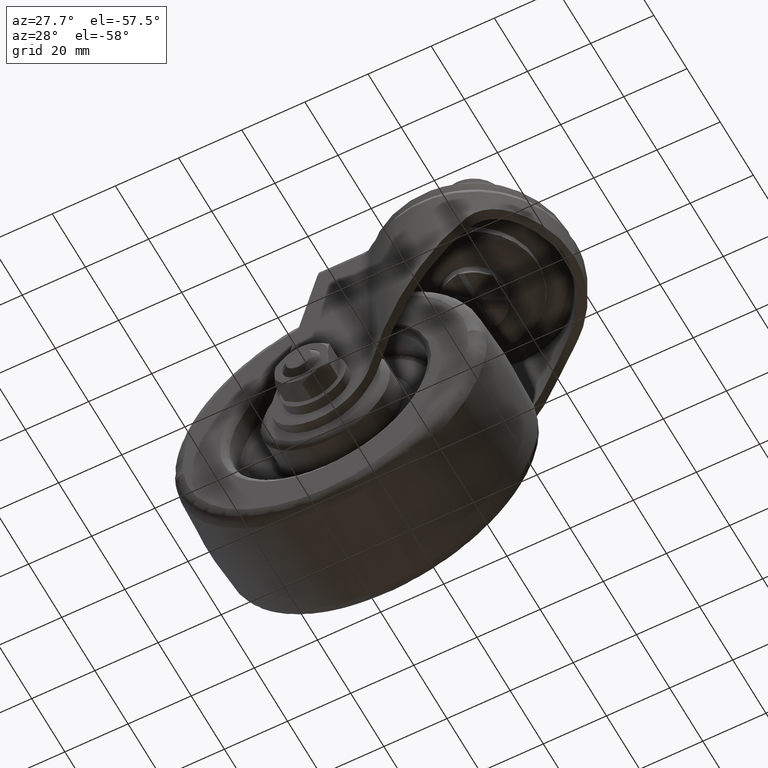
[diagram: clean part render]
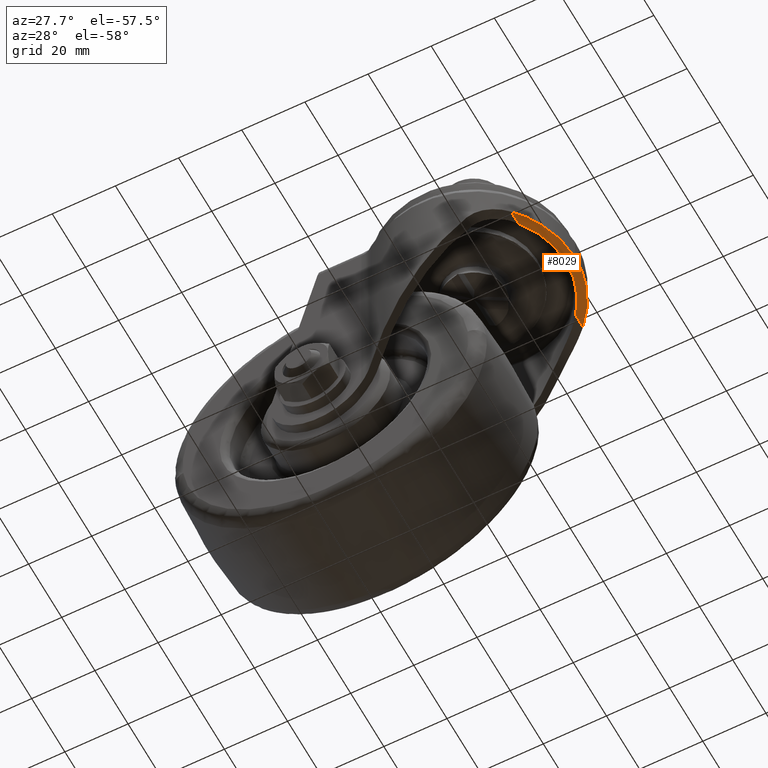
[diagram: same view with one face highlighted and labeled with its STEP entity id]
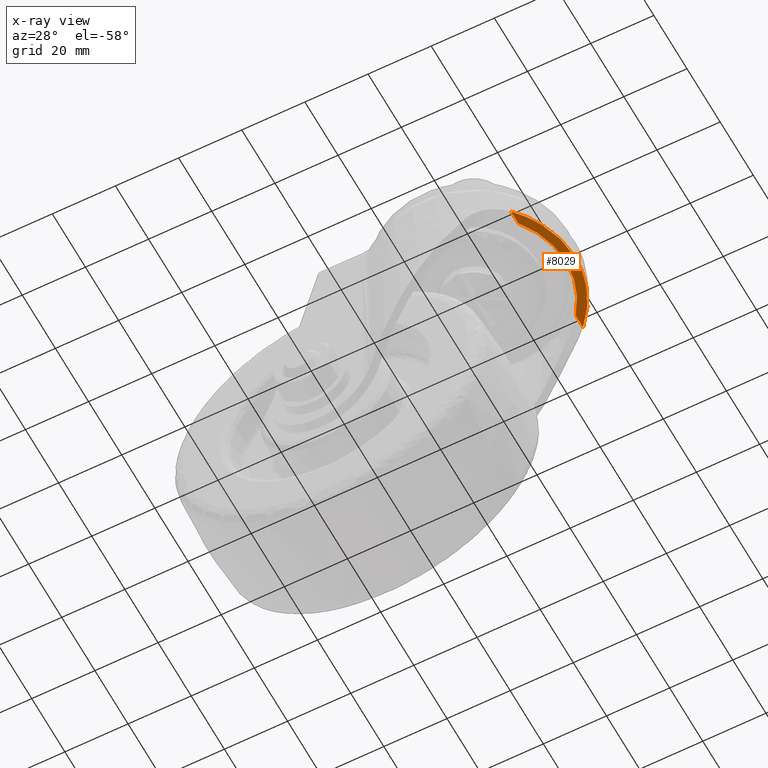
[diagram: x-ray of the same camera — body ghosted, the highlighted face saturated]
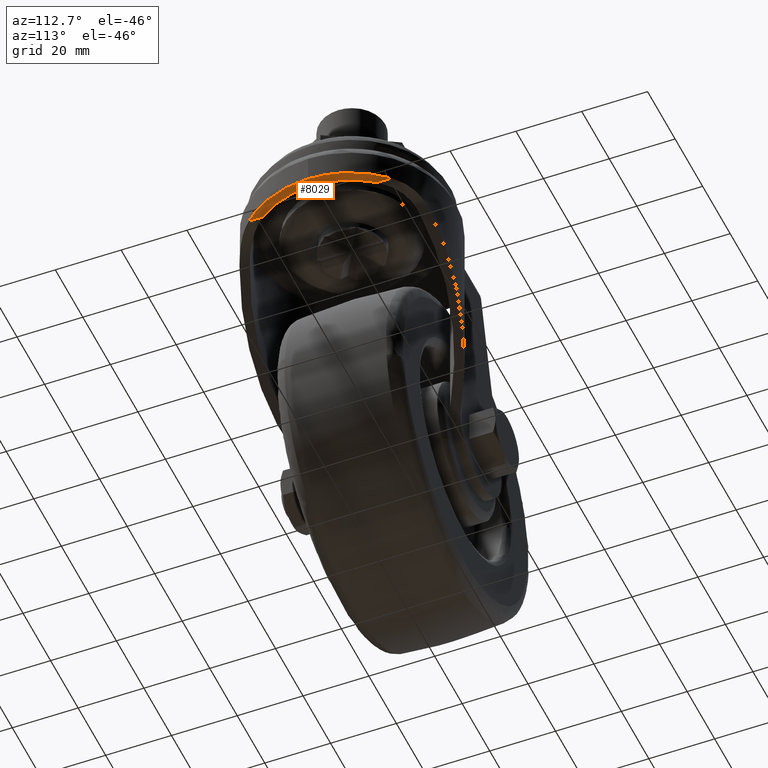
[diagram: same view with one face highlighted and labeled with its STEP entity id]
A machine part, auxiliary view. The second image highlights one B-rep face of the part: STEP entity #8029.
The next image is the same camera in x-ray: the body ghosted, the highlighted face saturated — about 0% of this face is hidden behind the body in this view.
A second angle (auxiliary view) of the same face is appended — the face is thin or edge-on in the first view.
In plain terms, the highlighted face is a freeform B-spline surface patch.
Its self-contained STEP definition (entity closure, byte-faithful):
#6244=CARTESIAN_POINT('',(23.181616000000201,17.288022740067099,-21.699999999999999));
#6245=VERTEX_POINT('',#6244);
#6281=CARTESIAN_POINT('',(29.100000000714680,0.000002647915596,-21.700000000000081));
#6282=VERTEX_POINT('',#6281);
#6283=CARTESIAN_POINT('',(23.181616000000201,17.288022740067099,-21.699999999999999));
#6284=CARTESIAN_POINT('',(23.301056539995571,17.133321759818479,-21.699999999999999));
#6285=CARTESIAN_POINT('',(23.419030401587982,16.977240202057271,-21.699999999999999));
#6286=CARTESIAN_POINT('',(23.651134810653190,16.663546772231200,-21.699999999999999));
#6287=CARTESIAN_POINT('',(23.993921145452081,16.190202013547339,-21.700000000000010));
#6288=CARTESIAN_POINT('',(24.320732521143430,15.708514374585350,-21.700000000000010));
#6289=CARTESIAN_POINT('',(24.953313424321038,14.734150046910280,-21.700000000000010));
#6290=CARTESIAN_POINT('',(25.740710768632340,13.405728851916111,-21.700000000000010));
#6291=CARTESIAN_POINT('',(26.417078603454609,12.019322788305381,-21.700000000000031));
#6292=CARTESIAN_POINT('',(27.037370636067632,10.603631284827070,-21.700000000000038));
#6293=CARTESIAN_POINT('',(27.319482500207979,9.881144771027335,-21.700000000000038));
#6294=CARTESIAN_POINT('',(27.699318601081789,8.774785136676252,-21.700000000000049));
#6295=CARTESIAN_POINT('',(27.818878475024711,8.401529096752491,-21.700000000000049));
#6296=CARTESIAN_POINT('',(28.041415615810148,7.653658744306554,-21.700000000000049));
#6297=CARTESIAN_POINT('',(28.144622732000322,7.278465944122128,-21.700000000000060));
#6298=CARTESIAN_POINT('',(28.430374479297289,6.149163775901439,-21.700000000000060));
#6299=CARTESIAN_POINT('',(28.747802768808182,4.633509708709880,-21.700000000000060));
#6300=CARTESIAN_POINT('',(28.939490968487249,3.098239608738750,-21.700000000000070));
#6301=CARTESIAN_POINT('',(29.067570314285309,1.555403521955185,-21.700000000000081));
#6302=CARTESIAN_POINT('',(29.100000241560551,0.780169197072996,-21.700000000000070));
#6303=CARTESIAN_POINT('',(29.100000000714680,0.000002647915596,-21.700000000000081));
#6304=B_SPLINE_CURVE_WITH_KNOTS('',3,(#6283,#6284,#6285,#6286,#6287,#6288,#6289,#6290,#6291,#6292,#6293,#6294,#6295,#6296,#6297,#6298,#6299,#6300,#6301,#6302,#6303),.UNSPECIFIED.,.F.,.U.,(4,2,1,2,1,2,2,2,2,1,2,4),(0.0,0.015625000000000,0.031250000000000,0.062500000000000,0.125000000000000,0.187500000000000,0.250000000000000,0.281250000000000,0.312500000000000,0.374999999999999,0.437499999999999,0.499811739248937),.UNSPECIFIED.);
#6305=EDGE_CURVE('',#6245,#6282,#6304,.T.);
#6409=CARTESIAN_POINT('',(23.181616000000201,-17.288022740067099,-21.699999999999999));
#6410=VERTEX_POINT('',#6409);
#6411=CARTESIAN_POINT('',(29.100000000714680,0.000002647915596,-21.700000000000081));
#6412=CARTESIAN_POINT('',(29.099999999987201,-0.002354447910457,-21.700000000000081));
#6413=CARTESIAN_POINT('',(29.099999703234271,-0.004711588758289,-21.700000000000081));
#6414=CARTESIAN_POINT('',(29.099802307710839,-0.789622312405713,-21.700000000000081));
#6415=CARTESIAN_POINT('',(29.066985183358959,-1.566601144222461,-21.700000000000081));
#6416=CARTESIAN_POINT('',(28.938184197756371,-3.109763819725974,-21.700000000000070));
#6417=CARTESIAN_POINT('',(28.746207452592419,-4.642129965156079,-21.700000000000060));
#6418=CARTESIAN_POINT('',(28.429399725743089,-6.153162905299591,-21.700000000000070));
#6419=CARTESIAN_POINT('',(28.049702279619432,-7.653448198716451,-21.700000000000049));
#6420=CARTESIAN_POINT('',(27.828412395176692,-8.398217654081414,-21.700000000000049));
#6421=CARTESIAN_POINT('',(27.511400350570518,-9.322275298951729,-21.700000000000038));
#6422=CARTESIAN_POINT('',(27.445952049983269,-9.506786261974400,-21.700000000000049));
#6423=CARTESIAN_POINT('',(27.311620124771299,-9.873394702606838,-21.700000000000038));
#6424=CARTESIAN_POINT('',(27.104752644412450,-10.420332733273209,-21.700000000000038));
#6425=CARTESIAN_POINT('',(26.881940292226069,-10.958437673118580,-21.700000000000031));
#6426=CARTESIAN_POINT('',(26.415384699279521,-12.023052323839419,-21.700000000000031));
#6427=CARTESIAN_POINT('',(26.076473865667460,-12.717353998440229,-21.700000000000021));
#6428=CARTESIAN_POINT('',(25.343793989550619,-14.075567166606330,-21.700000000000021));
#6429=CARTESIAN_POINT('',(24.950023818950118,-14.739478035232640,-21.700000000000010));
#6430=CARTESIAN_POINT('',(24.107430012907180,-16.036801424162491,-21.699999999999999));
#6431=CARTESIAN_POINT('',(23.658608809672540,-16.670215291852980,-21.699999999999999));
#6432=CARTESIAN_POINT('',(23.181616000000201,-17.288022740067099,-21.699999999999999));
#6433=B_SPLINE_CURVE_WITH_KNOTS('',3,(#6411,#6412,#6413,#6414,#6415,#6416,#6417,#6418,#6419,#6420,#6421,#6422,#6423,#6424,#6425,#6426,#6427,#6428,#6429,#6430,#6431,#6432),.UNSPECIFIED.,.F.,.U.,(4,2,2,1,2,2,2,1,2,2,2,4),(0.499811739248937,0.499999999999999,0.562499999999999,0.624999999999998,0.687499999999998,0.749999999999998,0.765624999999998,0.781249999999998,0.812499999999998,0.874999999999999,0.937499999999999,1.0),.UNSPECIFIED.);
#6434=EDGE_CURVE('',#6282,#6410,#6433,.T.);
#7978=CARTESIAN_POINT('',(32.440478263708250,-23.883913330115121,-21.699999999999999));
#7979=CARTESIAN_POINT('',(22.741137499764459,-23.883913330115121,-21.699999999999999));
#7980=CARTESIAN_POINT('',(32.440478263708250,23.883914494978249,-21.699999999999999));
#7981=CARTESIAN_POINT('',(22.741137499764459,23.883914494978260,-21.699999999999999));
#7982=B_SPLINE_SURFACE_WITH_KNOTS('',1,1,((#7978,#7980),(#7979,#7981)),.UNSPECIFIED.,.F.,.F.,.U.,(2,2),(2,2),(0.0,9.699340763943791),(0.0,47.767827825093377),.UNSPECIFIED.);
#7983=CARTESIAN_POINT('',(23.181616000000201,-21.714622615046299,-21.699999999999999));
#7984=VERTEX_POINT('',#7983);
#7985=CARTESIAN_POINT('',(23.181616000000201,-17.288022740067099,-21.699999999999999));
#7986=CARTESIAN_POINT('',(23.181616000000201,-21.714622615046299,-21.699999999999999));
#7987=QUASI_UNIFORM_CURVE('',1,(#7985,#7986),.UNSPECIFIED.,.F.,.U.);
#7988=EDGE_CURVE('',#6410,#7984,#7987,.T.);
#7989=ORIENTED_EDGE('',*,*,#7988,.F.);
#7990=ORIENTED_EDGE('',*,*,#6434,.F.);
#7991=ORIENTED_EDGE('',*,*,#6305,.F.);
#7992=CARTESIAN_POINT('',(23.181616000000201,21.714622615046299,-21.699999999999999));
#7993=VERTEX_POINT('',#7992);
#7994=CARTESIAN_POINT('',(23.181616000000201,21.714622615046299,-21.699999999999999));
#7995=CARTESIAN_POINT('',(23.181616000000201,17.288022740067099,-21.699999999999999));
#7996=QUASI_UNIFORM_CURVE('',1,(#7994,#7995),.UNSPECIFIED.,.F.,.U.);
#7997=EDGE_CURVE('',#7993,#6245,#7996,.T.);
#7998=ORIENTED_EDGE('',*,*,#7997,.F.);
#7999=CARTESIAN_POINT('',(32.0,0.000000011422180,-21.699999999999999));
#8000=VERTEX_POINT('',#7999);
#8001=CARTESIAN_POINT('',(23.181616000000201,21.714622615046299,-21.699999999999999));
#8002=CARTESIAN_POINT('',(31.999999995361406,12.592380838325996,-21.699999999999992));
#8003=CARTESIAN_POINT('',(32.0,0.000000011422177,-21.699999999999996));
#8011=(BOUNDED_CURVE()B_SPLINE_CURVE(2,(#8001,#8002,#8003),.UNSPECIFIED.,.F.,.U.)B_SPLINE_CURVE_WITH_KNOTS((3,3),(0.0,0.499999999773233),.UNSPECIFIED.)CURVE()GEOMETRIC_REPRESENTATION_ITEM()RATIONAL_B_SPLINE_CURVE((1.0,0.862212750062495,0.862212750000003))REPRESENTATION_ITEM(''));
#8012=EDGE_CURVE('',#7993,#8000,#8011,.T.);
#8013=ORIENTED_EDGE('',*,*,#8012,.T.);
#8014=CARTESIAN_POINT('',(31.999999999999989,0.000000011422177,-21.699999999999996));
#8015=CARTESIAN_POINT('',(32.000000004638594,-12.592380828729151,-21.699999999999996));
#8016=CARTESIAN_POINT('',(23.181616000000218,-21.714622615046292,-21.699999999999999));
#8024=(BOUNDED_CURVE()B_SPLINE_CURVE(2,(#8014,#8015,#8016),.UNSPECIFIED.,.F.,.U.)B_SPLINE_CURVE_WITH_KNOTS((3,3),(0.499999999773233,1.0),.UNSPECIFIED.)CURVE()GEOMETRIC_REPRESENTATION_ITEM()RATIONAL_B_SPLINE_CURVE((0.862212750000003,0.862212749937512,1.0))REPRESENTATION_ITEM(''));
#8025=EDGE_CURVE('',#8000,#7984,#8024,.T.);
#8026=ORIENTED_EDGE('',*,*,#8025,.T.);
#8027=EDGE_LOOP('',(#7989,#7990,#7991,#7998,#8013,#8026));
#8028=FACE_OUTER_BOUND('',#8027,.T.);
#8029=ADVANCED_FACE('',(#8028),#7982,.T.);